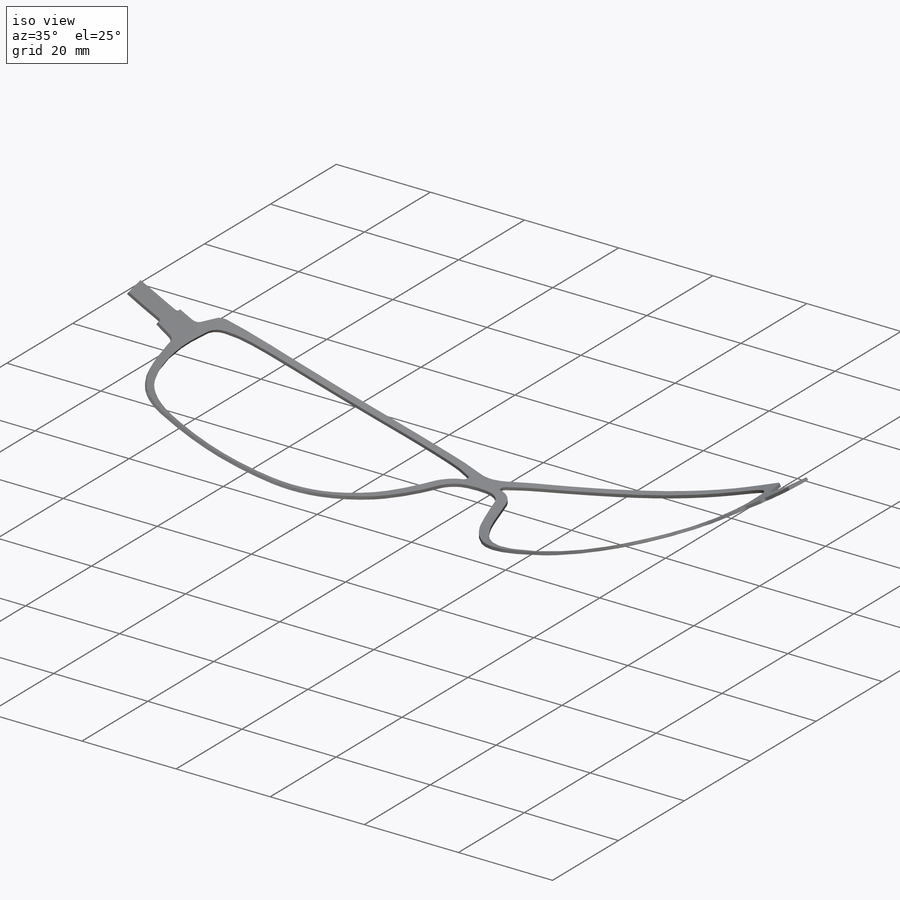
[diagram: iso view]
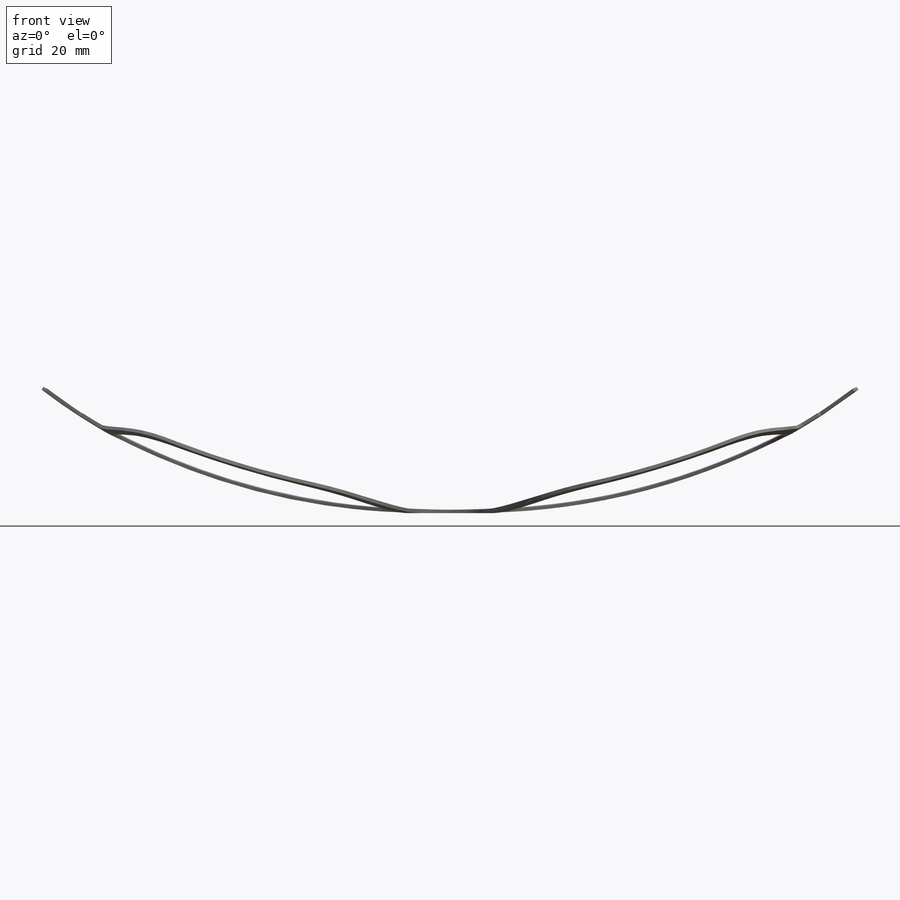
[diagram: front view]
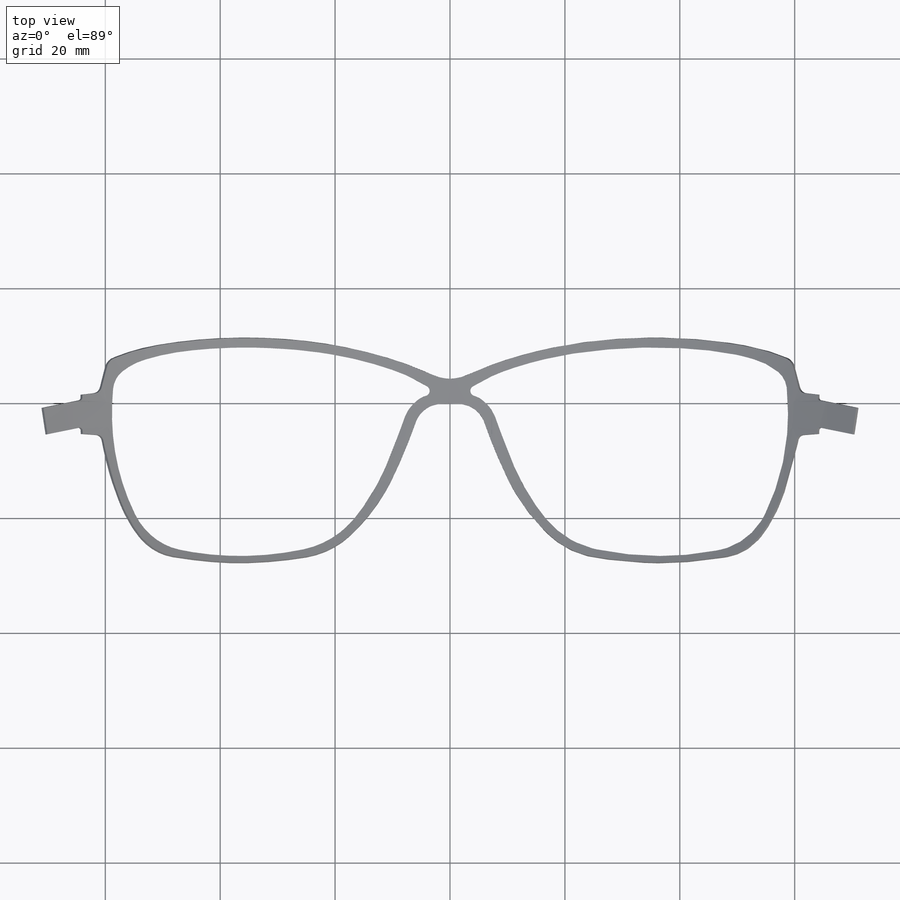
[diagram: top view]
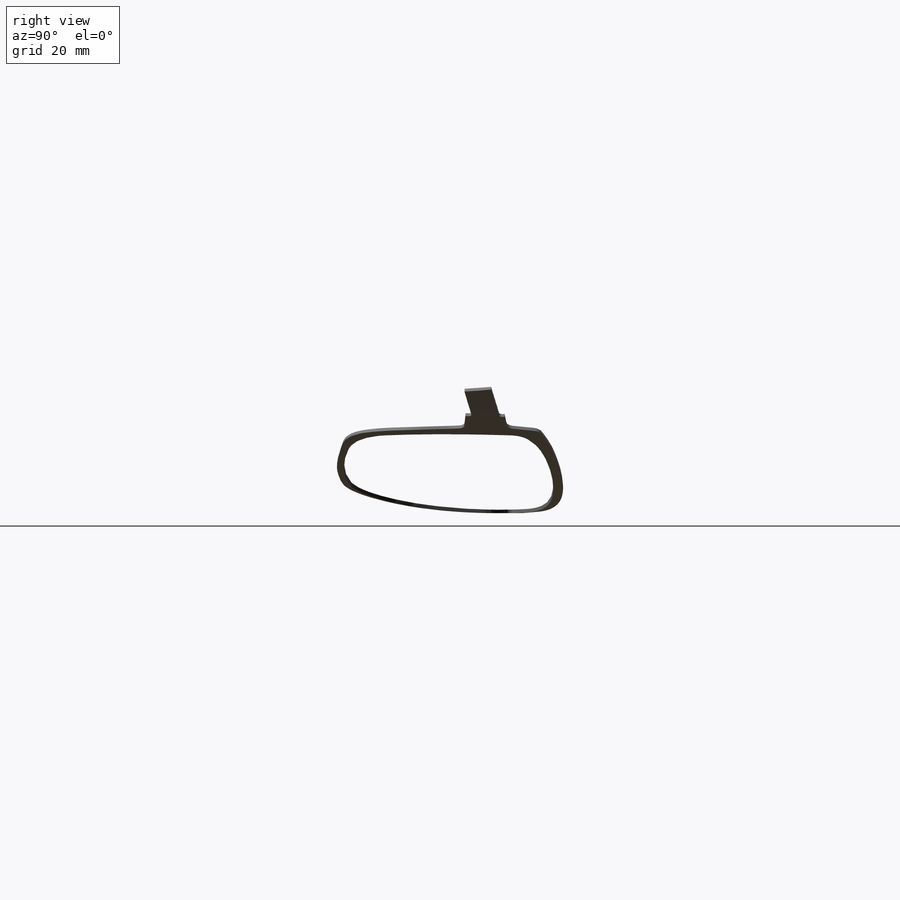
[diagram: right view]
SOLIDWORKS PART (.sldprt)
format: sldprt  version: not decoded by parser v0  size: 1,119,744 bytes
history: native  units: mm
features: sketch x15, plane x5, revolve x3, material x1, cut_extrude x1, delete_body x1, extrude x1, surface_op x1, mirror x1 (+10 scaffold rows collapsed)
feature tree (39):
  scaffold x10  (default folders/planes/origin — collapsed)
  material  "Material <nicht festgelegt>"
  plane  "Ebene vorne"
  plane  "Ebene oben"
  plane  "Ebene rechts"
  plane  "Ebene1"  Offset=13.1mm
  sketch  "Skizze7"  dims[D2=105.6mm D1=7.25mm D3=70.0mm D5=105.0mm D4=0.6mm]
  revolve  "Rotation2"  Angle=360deg
  sketch  "Skizze8"  dims[D1=7.25mm]
  cut_extrude  "Schnitt-Linear austragen3"  Depth=0.6mm
  sketch  "Skizze9"  dims[D1=0.6mm D2=7.0mm D3=7.0mm]
  sketch  "Skizze10"
  sketch  "Skizze12"
  sketch  "Block1"  dims[D1=0.5mm D2=0.5mm D3=4.7mm D4=0.5mm D5=8.0mm]
  sketch  "Skizze13"  dims[D1=4.3mm]
  sketch  "Skizze14"
  sketch  "Skizze15"
  plane  "Ebene2"
  sketch  "Skizze16"  dims[c1.D1=~248.077021mm c2.D1=~6283.185307mm]
  sketch  "3D-Skizze3"  dims[D1=0.0mm]
  sketch  "Skizze16<2>"  dims[D1=~6283.185307mm]
  revolve  "3D-Skizze4"  [1 undecoded]
  delete_body  "Körper-Löschen1"  Körper-Löschen2=0deg
  sketch  "Skizze17"  dims[D1=100.0mm]
  revolve  "3D-Skizze5"  [1 undecoded]
  extrude  "Oberfläche-Ausformung2"  [1 undecoded]
  sketch  "3D-Skizze5<2>"  dims[D1=5.0mm D2=5.0mm D3=5.0mm D4=5.0mm D5=5.0mm D6=5.0mm D7=5.0mm D8=5.0mm D9=5.0mm]
  sketch  "Oberfläche-Verlängern2"  dims[D1=5.0mm D2=5.0mm]
  surface_op  "Oberfläche-Trimmen2"  Körper-Löschen3=0deg
  mirror  "Spiegeln5"
decode coverage: 15 of 23 modeling features carry decoded parameters
note: ~ marks probable driven/reference dimensions
note: 3 parameter values undecoded
summary: no parameter record found for 3 features
note: suppression state not decoded; provenance and decode notes live in map.json
